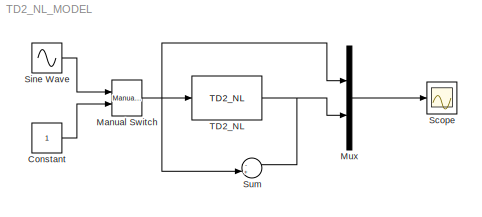
MODEL TD2_NL_MODEL
KIND model
BLOCK [Constant] Constant
  SID = 113
  SampleTime = 0.01
BLOCK [Reference] Manual Switch  REF=simulink/Signal\nRouting/Manual Switch
  FunctionWithSeparateData = off
  GeneratePreprocessorConditionals = off
  Ports = [2, 1]
  RTWMemSecDataConstants = Inherit from model
  RTWMemSecDataInternal = Inherit from model
  RTWMemSecDataParameters = Inherit from model
  RTWMemSecFuncExecute = Inherit from model
  RTWMemSecFuncInitTerm = Inherit from model
  SID = 114
  ShowPortLabels = FromPortIcon
  SourceBlock = simulink/Signal\nRouting/Manual Switch
  SourceType = Manual Switch
  SystemSampleTime = -1
  action = 0
  sw = 0
  varsize = off
BLOCK [Mux] Mux
  DisplayOption = bar
  Inputs = 2
  Ports = [2, 1]
  SID = 111
BLOCK [Scope] Scope
  DataFormat = Array
  Floating = off
  NumInputPorts = 1
  Ports = [1]
  SID = 3
  SampleTime = 0
  SaveToWorkspace = on
  TickLabels = on
  TimeRange = 20
  YMax = 1.05
  YMin = -0.05
  ZoomMode = yonly
BLOCK [Sin] Sine Wave
  Frequency = pi/2
  Ports = [0, 1]
  SID = 115
  SampleTime = 0
BLOCK [Sum] Sum
  IconShape = round
  InputSameDT = off
  Inputs = -+|
  OutDataTypeStr = Inherit: Inherit via internal rule
  Ports = [2, 1]
  SID = 112
  SaturateOnIntegerOverflow = off
BLOCK [Reference] TD2_NL  REF=ADRC/TD/TD2_NL/TD2_NL
  Ports = [1, 1]
  SID = 118
  SourceBlock = ADRC/TD/TD2_NL/TD2_NL
  h = 0.01
  h0 = 0
  r = 20
LINE Constant:1 -> Manual Switch:2
NET Manual Switch:1 -> Mux:1, Sum:2, TD2_NL:1
LINE Mux:1 -> Scope:1
LINE Sine Wave:1 -> Manual Switch:1
NET TD2_NL:1 -> Mux:2, Sum:1
note: NET lines group one-source signal fan-out (src -> all destinations, sorted); 1:1 wires keep LINE
